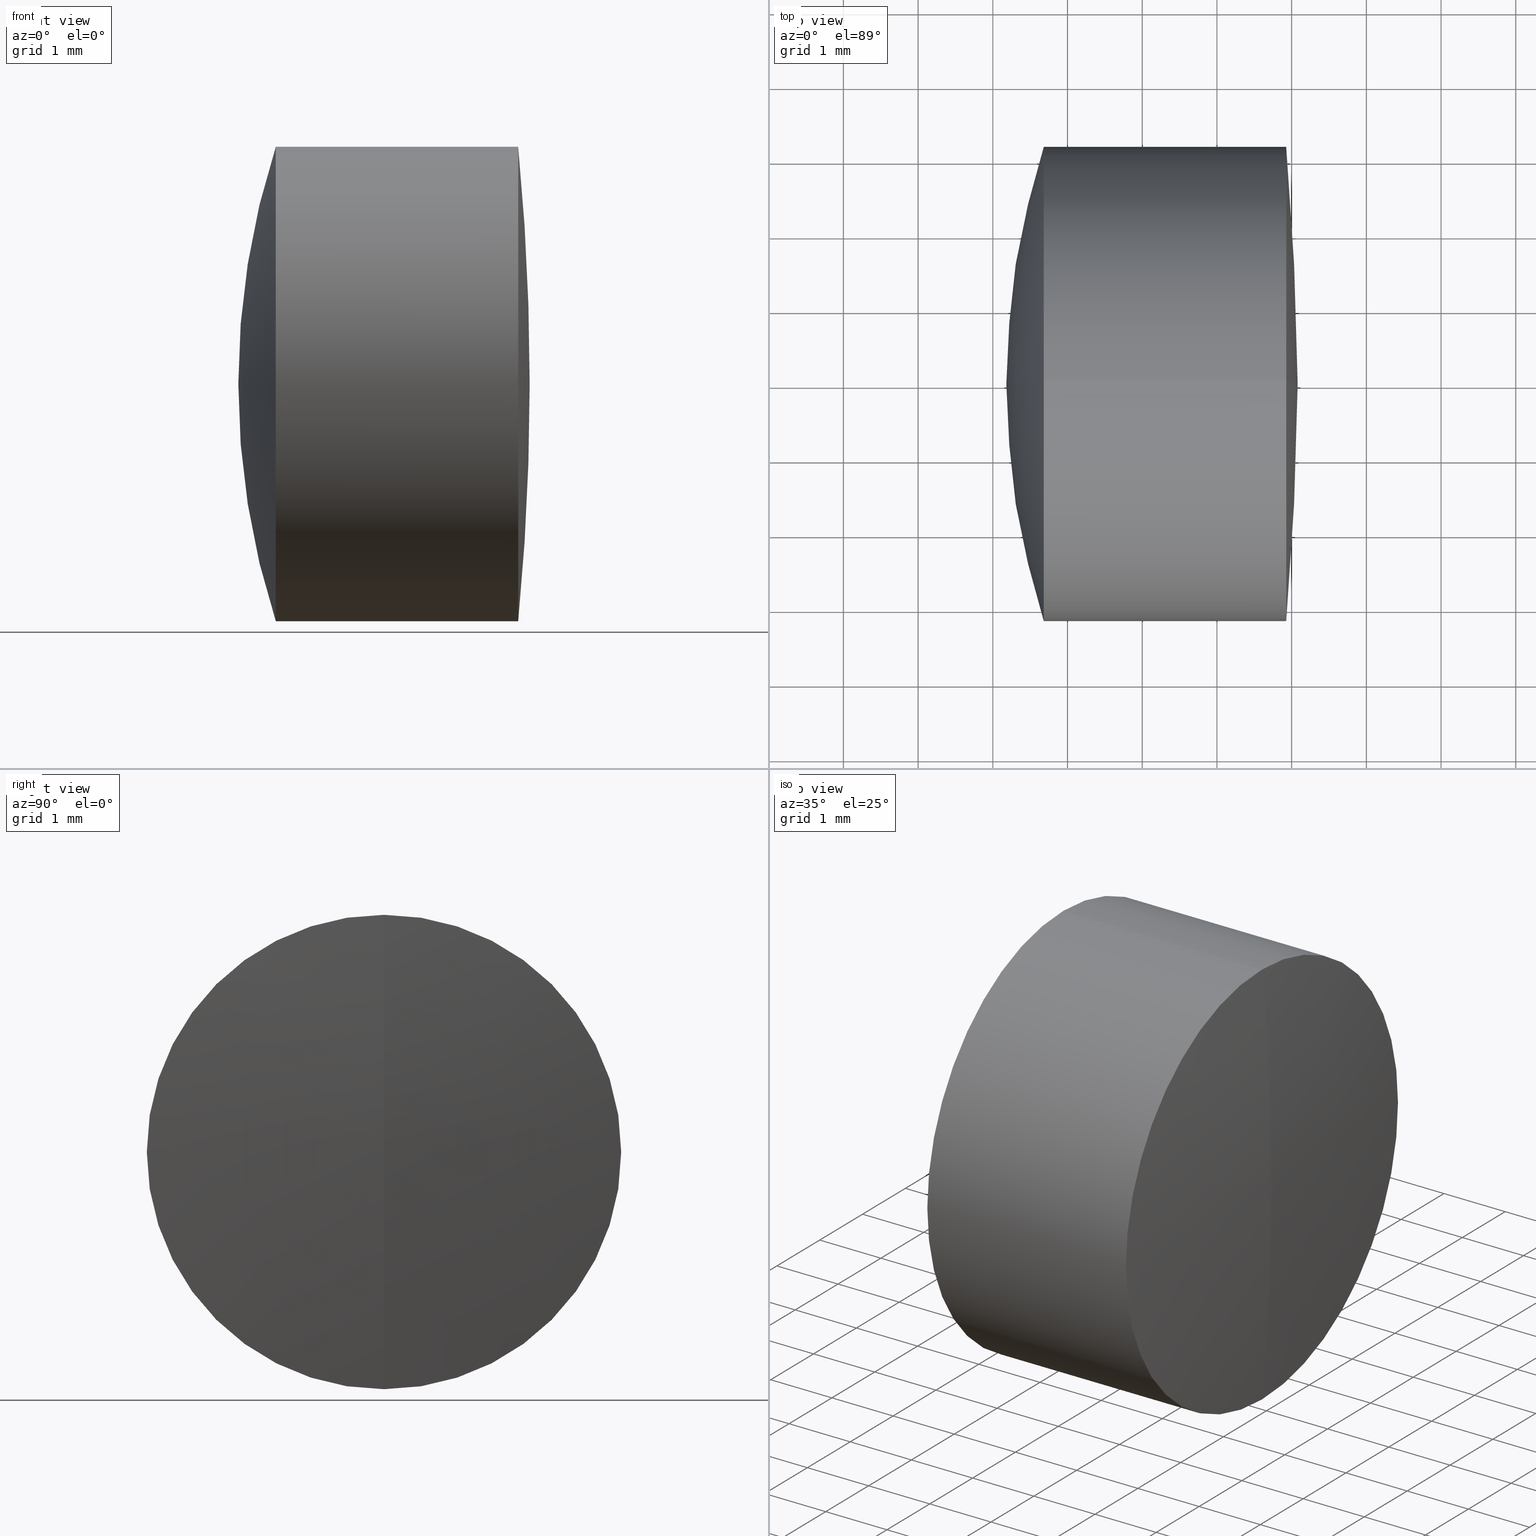
[diagram: canonical four-view strip — front | top / right | iso, engineering-drawing reading convention]
A machine part, canonical four-view strip (front | top / right | iso — engineering-drawing reading convention). The complete STEP part file that produces these views, byte-faithful:
ISO-10303-21;
HEADER;
FILE_DESCRIPTION (( 'STEP AP214' ),
    '1' );
FILE_NAME ('145105.STEP',
    '2019-05-29T01:53:21',
    ( 'user' ),
    ( '΢���й�' ),
    'SwSTEP 2.0',
    'SolidWorks 2016',
    '' );
FILE_SCHEMA (( 'AUTOMOTIVE_DESIGN' ));
ENDSEC;

DATA;
#1 = DIRECTION ( 'NONE',  ( -1.000000000000000000, -0.0000000000000000000, -0.0000000000000000000 ) ) ;
#2 = EDGE_CURVE ( 'NONE', #155, #47, #7, .T. ) ;
#3 = CARTESIAN_POINT ( 'NONE',  ( 271.4807127546710600, 0.0000000000000000000, 1.443480347080286500E-016 ) ) ;
#4 = CIRCLE ( 'NONE', #324, 3.175000000000000300 ) ;
#5 = SPHERICAL_SURFACE ( 'NONE', #291, 32.90000000000002700 ) ;
#6 = AXIS2_PLACEMENT_3D ( 'NONE', #280, #101, #251 ) ;
#7 = CIRCLE ( 'NONE', #341, 7.800000000000546900 ) ;
#8 = ORIENTED_EDGE ( 'NONE', *, *, #345, .F. ) ;
#9 = EDGE_LOOP ( 'NONE', ( #276, #259, #87, #168 ) ) ;
#10 = DIRECTION ( 'NONE',  ( 1.000000000000000000, 0.0000000000000000000, 0.0000000000000000000 ) ) ;
#11 = STYLED_ITEM ( 'NONE', ( #111 ), #297 ) ;
#12 = ADVANCED_FACE ( 'NONE', ( #153 ), #260, .T. ) ;
#13 = ADVANCED_BREP_SHAPE_REPRESENTATION ( '145105', ( #297, #118, #246 ), #91 ) ;
#14 = DIRECTION ( 'NONE',  ( 0.0000000000000000000, 0.0000000000000000000, 1.000000000000000000 ) ) ;
#15 = AXIS2_PLACEMENT_3D ( 'NONE', #230, #48, #202 ) ;
#16 = DIRECTION ( 'NONE',  ( 0.0000000000000000000, -1.000000000000000000, 0.0000000000000000000 ) ) ;
#17 = EDGE_CURVE ( 'NONE', #210, #46, #328, .T. ) ;
#18 =( LENGTH_UNIT ( ) NAMED_UNIT ( * ) SI_UNIT ( .MILLI., .METRE. ) );
#19 = DIRECTION ( 'NONE',  ( 0.0000000000000000000, -1.000000000000000000, -1.224646799147353200E-016 ) ) ;
#20 = AXIS2_PLACEMENT_3D ( 'NONE', #310, #19, #110 ) ;
#21 = EDGE_LOOP ( 'NONE', ( #335, #108, #255, #221 ) ) ;
#22 = SPHERICAL_SURFACE ( 'NONE', #69, 7.800000000000547800 ) ;
#23 = DIRECTION ( 'NONE',  ( 0.0000000000000000000, 1.000000000000000000, 0.0000000000000000000 ) ) ;
#24 = ORIENTED_EDGE ( 'NONE', *, *, #113, .T. ) ;
#25 = EDGE_CURVE ( 'NONE', #307, #46, #292, .T. ) ;
#26 = FACE_OUTER_BOUND ( 'NONE', #52, .T. ) ;
#27 = DIRECTION ( 'NONE',  ( -1.000000000000000000, -0.0000000000000000000, -0.0000000000000000000 ) ) ;
#28 = AXIS2_PLACEMENT_3D ( 'NONE', #90, #187, #295 ) ;
#29 = AXIS2_PLACEMENT_3D ( 'NONE', #329, #253, #14 ) ;
#30 = SURFACE_STYLE_USAGE ( .BOTH. , #240 ) ;
#31 = DIRECTION ( 'NONE',  ( -0.0000000000000000000, -1.000000000000000000, -0.0000000000000000000 ) ) ;
#32 = ORIENTED_EDGE ( 'NONE', *, *, #275, .F. ) ;
#33 = ORIENTED_EDGE ( 'NONE', *, *, #43, .T. ) ;
#34 = DIRECTION ( 'NONE',  ( 0.0000000000000000000, 0.0000000000000000000, 1.000000000000000000 ) ) ;
#35 = CARTESIAN_POINT ( 'NONE',  ( 264.9271534009465100, 3.888253587292847600E-016, -3.175000000000000700 ) ) ;
#36 = CARTESIAN_POINT ( 'NONE',  ( -0.5519199926577972300, 0.0000000000000000000, 3.175000000000001600 ) ) ;
#37 = EDGE_CURVE ( 'NONE', #210, #220, #199, .T. ) ;
#38 = EDGE_LOOP ( 'NONE', ( #244, #59, #218 ) ) ;
#39 = FACE_OUTER_BOUND ( 'NONE', #51, .T. ) ;
#40 = MECHANICAL_DESIGN_GEOMETRIC_PRESENTATION_REPRESENTATION (  '', ( #298 ), #225 ) ;
#41 = FACE_OUTER_BOUND ( 'NONE', #219, .T. ) ;
#42 = CARTESIAN_POINT ( 'NONE',  ( 0.0000000000000000000, 0.0000000000000000000, 0.0000000000000000000 ) ) ;
#43 = EDGE_CURVE ( 'NONE', #277, #194, #133, .T. ) ;
#44 =( NAMED_UNIT ( * ) PLANE_ANGLE_UNIT ( ) SI_UNIT ( $, .RADIAN. ) );
#45 = ADVANCED_FACE ( 'NONE', ( #65 ), #238, .T. ) ;
#46 = VERTEX_POINT ( 'NONE', #35 ) ;
#47 = VERTEX_POINT ( 'NONE', #88 ) ;
#48 = DIRECTION ( 'NONE',  ( -0.0000000000000000000, 1.000000000000000000, 1.224646799147353200E-016 ) ) ;
#49 = SURFACE_SIDE_STYLE ('',( #308 ) ) ;
#50 = AXIS2_PLACEMENT_3D ( 'NONE', #266, #31, #184 ) ;
#51 = EDGE_LOOP ( 'NONE', ( #148, #24, #263 ) ) ;
#52 = EDGE_LOOP ( 'NONE', ( #66, #140, #109, #128 ) ) ;
#53 = FACE_OUTER_BOUND ( 'NONE', #226, .T. ) ;
#54 = CARTESIAN_POINT ( 'NONE',  ( 232.1807127546716700, 0.0000000000000000000, 0.0000000000000000000 ) ) ;
#55 = CARTESIAN_POINT ( 'NONE',  ( 261.1807127546711100, 0.0000000000000000000, -4.863450668528573700E-016 ) ) ;
#56 = STYLED_ITEM ( 'NONE', ( #331 ), #13 ) ;
#57 = CARTESIAN_POINT ( 'NONE',  ( 232.1807127546716700, 0.0000000000000000000, 0.0000000000000000000 ) ) ;
#58 = COLOUR_RGB ( '',1.000000000000000000, 1.000000000000000000, 1.000000000000000000 ) ;
#59 = ORIENTED_EDGE ( 'NONE', *, *, #303, .T. ) ;
#60 = CIRCLE ( 'NONE', #78, 3.175000000000000300 ) ;
#61 = CARTESIAN_POINT ( 'NONE',  ( 255.7807127546711300, 0.0000000000000000000, 0.0000000000000000000 ) ) ;
#62 = CARTESIAN_POINT ( 'NONE',  ( 262.9052741446802200, 0.0000000000000000000, 0.0000000000000000000 ) ) ;
#63 = EDGE_CURVE ( 'NONE', #180, #47, #4, .T. ) ;
#64 = EDGE_LOOP ( 'NONE', ( #147, #104, #85 ) ) ;
#65 = FACE_OUTER_BOUND ( 'NONE', #120, .T. ) ;
#66 = ORIENTED_EDGE ( 'NONE', *, *, #17, .T. ) ;
#67 = EDGE_CURVE ( 'NONE', #46, #231, #188, .T. ) ;
#68 = CYLINDRICAL_SURFACE ( 'NONE', #325, 3.174999999999999800 ) ;
#69 = AXIS2_PLACEMENT_3D ( 'NONE', #138, #306, #282 ) ;
#70 = CARTESIAN_POINT ( 'NONE',  ( 264.9271534009465100, 0.0000000000000000000, 0.0000000000000000000 ) ) ;
#71 = SHAPE_DEFINITION_REPRESENTATION ( #185, #13 ) ;
#72 =( NAMED_UNIT ( * ) SI_UNIT ( $, .STERADIAN. ) SOLID_ANGLE_UNIT ( ) );
#73 = CYLINDRICAL_SURFACE ( 'NONE', #258, 3.174999999999999800 ) ;
#74 = ADVANCED_FACE ( 'NONE', ( #41 ), #265, .T. ) ;
#75 = CYLINDRICAL_SURFACE ( 'NONE', #336, 3.175000000000001600 ) ;
#76 = DIRECTION ( 'NONE',  ( 0.0000000000000000000, 0.0000000000000000000, 1.000000000000000000 ) ) ;
#77 = EDGE_CURVE ( 'NONE', #220, #231, #285, .T. ) ;
#78 = AXIS2_PLACEMENT_3D ( 'NONE', #103, #254, #76 ) ;
#79 = ORIENTED_EDGE ( 'NONE', *, *, #2, .T. ) ;
#80 = VERTEX_POINT ( 'NONE', #294 ) ;
#81 = UNCERTAINTY_MEASURE_WITH_UNIT (LENGTH_MEASURE( 1.000000000000000100E-005 ), #125, 'distance_accuracy_value', 'NONE');
#82 = DIRECTION ( 'NONE',  ( -1.000000000000000000, -0.0000000000000000000, -0.0000000000000000000 ) ) ;
#83 = AXIS2_PLACEMENT_3D ( 'NONE', #161, #229, #176 ) ;
#84 = FILL_AREA_STYLE ('',( #159 ) ) ;
#85 = ORIENTED_EDGE ( 'NONE', *, *, #288, .F. ) ;
#86 = DIRECTION ( 'NONE',  ( -1.000000000000000000, -0.0000000000000000000, -0.0000000000000000000 ) ) ;
#87 = ORIENTED_EDGE ( 'NONE', *, *, #167, .T. ) ;
#88 = CARTESIAN_POINT ( 'NONE',  ( 262.9052741446802200, 0.0000000000000000000, 3.175000000000000300 ) ) ;
#89 = DIRECTION ( 'NONE',  ( 0.0000000000000000000, 0.0000000000000000000, -1.000000000000000000 ) ) ;
#90 = CARTESIAN_POINT ( 'NONE',  ( 255.7807127546711300, 0.0000000000000000000, 0.0000000000000000000 ) ) ;
#91 =( GEOMETRIC_REPRESENTATION_CONTEXT ( 3 ) GLOBAL_UNCERTAINTY_ASSIGNED_CONTEXT ( ( #81 ) ) GLOBAL_UNIT_ASSIGNED_CONTEXT ( ( #125, #44, #200 ) ) REPRESENTATION_CONTEXT ( 'NONE', 'WORKASPACE' ) );
#92 = CARTESIAN_POINT ( 'NONE',  ( 124.5233095260452400, 3.888253587292846100E-016, -3.174999999999999800 ) ) ;
#93 = AXIS2_PLACEMENT_3D ( 'NONE', #313, #137, #290 ) ;
#94 = EDGE_LOOP ( 'NONE', ( #211, #117, #32 ) ) ;
#95 = CIRCLE ( 'NONE', #319, 3.174999999999999800 ) ;
#96 = AXIS2_PLACEMENT_3D ( 'NONE', #62, #217, #34 ) ;
#97 = CLOSED_SHELL ( 'NONE', ( #279, #100, #74, #252, #198, #45 ) ) ;
#98 =( LENGTH_UNIT ( ) NAMED_UNIT ( * ) SI_UNIT ( .MILLI., .METRE. ) );
#99 = AXIS2_PLACEMENT_3D ( 'NONE', #165, #314, #271 ) ;
#100 = ADVANCED_FACE ( 'NONE', ( #124 ), #73, .T. ) ;
#101 = DIRECTION ( 'NONE',  ( -1.000000000000000000, -0.0000000000000000000, -0.0000000000000000000 ) ) ;
#102 = DIRECTION ( 'NONE',  ( 0.0000000000000000000, 0.0000000000000000000, 1.000000000000000000 ) ) ;
#103 = CARTESIAN_POINT ( 'NONE',  ( 262.9052741446802200, 0.0000000000000000000, 0.0000000000000000000 ) ) ;
#104 = ORIENTED_EDGE ( 'NONE', *, *, #315, .T. ) ;
#105 = ORIENTED_EDGE ( 'NONE', *, *, #192, .T. ) ;
#106 = MECHANICAL_DESIGN_GEOMETRIC_PRESENTATION_REPRESENTATION (  '', ( #11 ), #142 ) ;
#107 = CARTESIAN_POINT ( 'NONE',  ( 124.5233095260452400, 0.0000000000000000000, 3.174999999999999800 ) ) ;
#108 = ORIENTED_EDGE ( 'NONE', *, *, #249, .T. ) ;
#109 = ORIENTED_EDGE ( 'NONE', *, *, #77, .F. ) ;
#110 = DIRECTION ( 'NONE',  ( 0.0000000000000000000, 1.224646799147353200E-016, -1.000000000000000000 ) ) ;
#111 = PRESENTATION_STYLE_ASSIGNMENT (( #205 ) ) ;
#112 = DIRECTION ( 'NONE',  ( -1.000000000000000000, -0.0000000000000000000, -0.0000000000000000000 ) ) ;
#113 = EDGE_CURVE ( 'NONE', #274, #231, #317, .T. ) ;
#114 = DIRECTION ( 'NONE',  ( 0.0000000000000000000, -1.000000000000000000, 0.0000000000000000000 ) ) ;
#115 = EDGE_CURVE ( 'NONE', #80, #277, #136, .T. ) ;
#116 = DIRECTION ( 'NONE',  ( -0.0000000000000000000, 1.000000000000000000, 1.224646799147353200E-016 ) ) ;
#117 = ORIENTED_EDGE ( 'NONE', *, *, #150, .T. ) ;
#118 = MANIFOLD_SOLID_BREP ( '��ת3', #287 ) ;
#119 = AXIS2_PLACEMENT_3D ( 'NONE', #213, #27, #239 ) ;
#120 = EDGE_LOOP ( 'NONE', ( #197, #79, #293 ) ) ;
#121 = SPHERICAL_SURFACE ( 'NONE', #305, 10.29999999999998600 ) ;
#122 = SURFACE_SIDE_STYLE ('',( #193 ) ) ;
#123 = ORIENTED_EDGE ( 'NONE', *, *, #115, .T. ) ;
#124 = FACE_OUTER_BOUND ( 'NONE', #21, .T. ) ;
#125 =( LENGTH_UNIT ( ) NAMED_UNIT ( * ) SI_UNIT ( .MILLI., .METRE. ) );
#126 = CARTESIAN_POINT ( 'NONE',  ( 261.6822753792524700, 0.0000000000000000000, 0.0000000000000000000 ) ) ;
#127 = AXIS2_PLACEMENT_3D ( 'NONE', #203, #16, #175 ) ;
#128 = ORIENTED_EDGE ( 'NONE', *, *, #37, .F. ) ;
#129 = FILL_AREA_STYLE_COLOUR ( '', #182 ) ;
#130 = FACE_OUTER_BOUND ( 'NONE', #9, .T. ) ;
#131 = CARTESIAN_POINT ( 'NONE',  ( 264.9271534009465100, 0.0000000000000000000, 3.175000000000000700 ) ) ;
#132 = PRESENTATION_LAYER_ASSIGNMENT (  '', '', ( #298 ) ) ;
#133 = CIRCLE ( 'NONE', #257, 10.29999999999998600 ) ;
#134 = DIRECTION ( 'NONE',  ( 0.0000000000000000000, -1.000000000000000000, 0.0000000000000000000 ) ) ;
#135 = FACE_OUTER_BOUND ( 'NONE', #64, .T. ) ;
#136 = CIRCLE ( 'NONE', #93, 3.174999999999999800 ) ;
#137 = DIRECTION ( 'NONE',  ( -1.000000000000000000, -0.0000000000000000000, -0.0000000000000000000 ) ) ;
#138 = CARTESIAN_POINT ( 'NONE',  ( 255.7807127546711300, 0.0000000000000000000, 0.0000000000000000000 ) ) ;
#139 = DIRECTION ( 'NONE',  ( -1.000000000000000000, -0.0000000000000000000, -0.0000000000000000000 ) ) ;
#140 = ORIENTED_EDGE ( 'NONE', *, *, #67, .T. ) ;
#141 = DIRECTION ( 'NONE',  ( 0.0000000000000000000, 0.0000000000000000000, 1.000000000000000000 ) ) ;
#142 =( GEOMETRIC_REPRESENTATION_CONTEXT ( 3 ) GLOBAL_UNCERTAINTY_ASSIGNED_CONTEXT ( ( #237 ) ) GLOBAL_UNIT_ASSIGNED_CONTEXT ( ( #18, #330, #152 ) ) REPRESENTATION_CONTEXT ( 'NONE', 'WORKASPACE' ) );
#143 = VECTOR ( 'NONE', #86, 1000.000000000000000 ) ;
#144 = CARTESIAN_POINT ( 'NONE',  ( 124.5233095260452400, 0.0000000000000000000, 0.0000000000000000000 ) ) ;
#145 = SPHERICAL_SURFACE ( 'NONE', #29, 7.800000000000547800 ) ;
#146 = APPLICATION_PROTOCOL_DEFINITION ( 'draft international standard', 'automotive_design', 1998, #326 ) ;
#147 = ORIENTED_EDGE ( 'NONE', *, *, #2, .F. ) ;
#148 = ORIENTED_EDGE ( 'NONE', *, *, #303, .F. ) ;
#149 = APPLICATION_CONTEXT ( 'automotive_design' ) ;
#150 = EDGE_CURVE ( 'NONE', #307, #210, #283, .T. ) ;
#151 = ADVANCED_FACE ( 'NONE', ( #26 ), #75, .T. ) ;
#152 =( NAMED_UNIT ( * ) SI_UNIT ( $, .STERADIAN. ) SOLID_ANGLE_UNIT ( ) );
#153 = FACE_OUTER_BOUND ( 'NONE', #94, .T. ) ;
#154 = CARTESIAN_POINT ( 'NONE',  ( 262.9052741446802200, 3.888253587292849000E-016, -3.175000000000002000 ) ) ;
#155 = VERTEX_POINT ( 'NONE', #262 ) ;
#156 = PRESENTATION_LAYER_ASSIGNMENT (  '', '', ( #11 ) ) ;
#157 = CARTESIAN_POINT ( 'NONE',  ( 262.9052741446802200, 3.888253587292847100E-016, -3.175000000000000700 ) ) ;
#158 =( NAMED_UNIT ( * ) SI_UNIT ( $, .STERADIAN. ) SOLID_ANGLE_UNIT ( ) );
#159 = FILL_AREA_STYLE_COLOUR ( '', #178 ) ;
#160 = CARTESIAN_POINT ( 'NONE',  ( 262.9052741446802200, 0.0000000000000000000, 0.0000000000000000000 ) ) ;
#161 = CARTESIAN_POINT ( 'NONE',  ( 255.7807127546711300, 0.0000000000000000000, 0.0000000000000000000 ) ) ;
#162 = DIRECTION ( 'NONE',  ( 0.0000000000000000000, 0.0000000000000000000, 1.000000000000000000 ) ) ;
#163 = DIRECTION ( 'NONE',  ( 0.0000000000000000000, 0.0000000000000000000, -1.000000000000000000 ) ) ;
#164 = ORIENTED_EDGE ( 'NONE', *, *, #37, .T. ) ;
#165 = CARTESIAN_POINT ( 'NONE',  ( 232.1807127546716700, 0.0000000000000000000, 0.0000000000000000000 ) ) ;
#166 = PRODUCT ( '145105', '145105', '', ( #170 ) ) ;
#167 = EDGE_CURVE ( 'NONE', #47, #80, #273, .T. ) ;
#168 = ORIENTED_EDGE ( 'NONE', *, *, #311, .F. ) ;
#169 = ORIENTED_EDGE ( 'NONE', *, *, #25, .T. ) ;
#170 = PRODUCT_CONTEXT ( 'NONE', #149, 'mechanical' ) ;
#171 = APPLICATION_PROTOCOL_DEFINITION ( 'draft international standard', 'automotive_design', 1998, #149 ) ;
#172 = ADVANCED_FACE ( 'NONE', ( #206 ), #195, .T. ) ;
#173 = SURFACE_STYLE_FILL_AREA ( #84 ) ;
#174 = UNCERTAINTY_MEASURE_WITH_UNIT (LENGTH_MEASURE( 1.000000000000000100E-005 ), #179, 'distance_accuracy_value', 'NONE');
#175 = DIRECTION ( 'NONE',  ( 0.0000000000000000000, 0.0000000000000000000, -1.000000000000000000 ) ) ;
#176 = DIRECTION ( 'NONE',  ( 0.0000000000000000000, 0.0000000000000000000, 1.000000000000000000 ) ) ;
#177 = CARTESIAN_POINT ( 'NONE',  ( 262.9052741446802200, 0.0000000000000000000, 3.175000000000002000 ) ) ;
#178 = COLOUR_RGB ( '',1.000000000000000000, 1.000000000000000000, 1.000000000000000000 ) ;
#179 =( LENGTH_UNIT ( ) NAMED_UNIT ( * ) SI_UNIT ( .MILLI., .METRE. ) );
#180 = VERTEX_POINT ( 'NONE', #157 ) ;
#181 = AXIS2_PLACEMENT_3D ( 'NONE', #57, #134, #289 ) ;
#182 = COLOUR_RGB ( '',1.000000000000000000, 1.000000000000000000, 1.000000000000000000 ) ;
#183 = DIRECTION ( 'NONE',  ( 0.0000000000000000000, -1.224646799147353200E-016, 1.000000000000000000 ) ) ;
#184 = DIRECTION ( 'NONE',  ( 0.0000000000000000000, 0.0000000000000000000, -1.000000000000000000 ) ) ;
#185 = PRODUCT_DEFINITION_SHAPE ( 'NONE', 'NONE',  #233 ) ;
#186 = CARTESIAN_POINT ( 'NONE',  ( 261.6822753792524700, 0.0000000000000000000, -3.174999999999999800 ) ) ;
#187 = DIRECTION ( 'NONE',  ( 0.0000000000000000000, 1.000000000000000000, 0.0000000000000000000 ) ) ;
#188 = LINE ( 'NONE', #222, #269 ) ;
#189 = CARTESIAN_POINT ( 'NONE',  ( 264.9271534009465100, 0.0000000000000000000, 0.0000000000000000000 ) ) ;
#190 = CARTESIAN_POINT ( 'NONE',  ( 263.5807127546716500, 0.0000000000000000000, 4.776122516675012600E-016 ) ) ;
#191 = DIRECTION ( 'NONE',  ( -1.000000000000000000, -0.0000000000000000000, -0.0000000000000000000 ) ) ;
#192 = EDGE_CURVE ( 'NONE', #80, #194, #339, .T. ) ;
#193 = SURFACE_STYLE_FILL_AREA ( #300 ) ;
#194 = VERTEX_POINT ( 'NONE', #55 ) ;
#195 = CYLINDRICAL_SURFACE ( 'NONE', #119, 3.175000000000001600 ) ;
#196 = DIRECTION ( 'NONE',  ( 0.0000000000000000000, 0.0000000000000000000, 1.000000000000000000 ) ) ;
#197 = ORIENTED_EDGE ( 'NONE', *, *, #315, .F. ) ;
#198 = ADVANCED_FACE ( 'NONE', ( #130 ), #68, .T. ) ;
#199 = LINE ( 'NONE', #36, #337 ) ;
#200 =( NAMED_UNIT ( * ) SI_UNIT ( $, .STERADIAN. ) SOLID_ANGLE_UNIT ( ) );
#201 = AXIS2_PLACEMENT_3D ( 'NONE', #61, #216, #183 ) ;
#202 = DIRECTION ( 'NONE',  ( 0.0000000000000000000, -1.224646799147353000E-016, 1.000000000000000000 ) ) ;
#203 = CARTESIAN_POINT ( 'NONE',  ( 255.7807127546711300, 0.0000000000000000000, 0.0000000000000000000 ) ) ;
#204 = CIRCLE ( 'NONE', #127, 7.800000000000547800 ) ;
#205 = SURFACE_STYLE_USAGE ( .BOTH. , #49 ) ;
#206 = FACE_OUTER_BOUND ( 'NONE', #248, .T. ) ;
#207 = DIRECTION ( 'NONE',  ( 0.0000000000000000000, 0.0000000000000000000, 1.000000000000000000 ) ) ;
#208 = PRODUCT_DEFINITION_FORMATION_WITH_SPECIFIED_SOURCE ( '�κ�', '', #166, .NOT_KNOWN. ) ;
#209 = CIRCLE ( 'NONE', #15, 7.800000000000546900 ) ;
#210 = VERTEX_POINT ( 'NONE', #131 ) ;
#211 = ORIENTED_EDGE ( 'NONE', *, *, #25, .F. ) ;
#212 = DIRECTION ( 'NONE',  ( 0.0000000000000000000, 0.0000000000000000000, 1.000000000000000000 ) ) ;
#213 = CARTESIAN_POINT ( 'NONE',  ( -0.5519199926577972300, 0.0000000000000000000, 0.0000000000000000000 ) ) ;
#214 = FACE_OUTER_BOUND ( 'NONE', #323, .T. ) ;
#215 = DIRECTION ( 'NONE',  ( 0.0000000000000000000, 0.0000000000000000000, 1.000000000000000000 ) ) ;
#216 = DIRECTION ( 'NONE',  ( -0.0000000000000000000, 1.000000000000000000, 1.224646799147353200E-016 ) ) ;
#217 = DIRECTION ( 'NONE',  ( -1.000000000000000000, -0.0000000000000000000, -0.0000000000000000000 ) ) ;
#218 = ORIENTED_EDGE ( 'NONE', *, *, #77, .T. ) ;
#219 = EDGE_LOOP ( 'NONE', ( #247, #105, #236 ) ) ;
#220 = VERTEX_POINT ( 'NONE', #177 ) ;
#221 = ORIENTED_EDGE ( 'NONE', *, *, #167, .F. ) ;
#222 = CARTESIAN_POINT ( 'NONE',  ( -0.5519199926577972300, 3.888253587292848100E-016, -3.175000000000001600 ) ) ;
#223 = AXIS2_PLACEMENT_3D ( 'NONE', #296, #116, #270 ) ;
#224 = PRODUCT_RELATED_PRODUCT_CATEGORY ( 'part', '', ( #166 ) ) ;
#225 =( GEOMETRIC_REPRESENTATION_CONTEXT ( 3 ) GLOBAL_UNCERTAINTY_ASSIGNED_CONTEXT ( ( #174 ) ) GLOBAL_UNIT_ASSIGNED_CONTEXT ( ( #179, #340, #158 ) ) REPRESENTATION_CONTEXT ( 'NONE', 'WORKASPACE' ) );
#226 = EDGE_LOOP ( 'NONE', ( #321, #123, #33 ) ) ;
#227 = ADVANCED_FACE ( 'NONE', ( #214 ), #5, .T. ) ;
#228 = UNCERTAINTY_MEASURE_WITH_UNIT (LENGTH_MEASURE( 1.000000000000000100E-005 ), #98, 'distance_accuracy_value', 'NONE');
#229 = DIRECTION ( 'NONE',  ( 0.0000000000000000000, 1.000000000000000000, 0.0000000000000000000 ) ) ;
#230 = CARTESIAN_POINT ( 'NONE',  ( 255.7807127546711300, 0.0000000000000000000, 0.0000000000000000000 ) ) ;
#231 = VERTEX_POINT ( 'NONE', #154 ) ;
#232 = CARTESIAN_POINT ( 'NONE',  ( 265.0807127546717100, 0.0000000000000000000, 2.014543984597397600E-015 ) ) ;
#233 = PRODUCT_DEFINITION ( 'δ֪', '', #208, #334 ) ;
#234 = FILL_AREA_STYLE ('',( #129 ) ) ;
#235 = ORIENTED_EDGE ( 'NONE', *, *, #150, .F. ) ;
#236 = ORIENTED_EDGE ( 'NONE', *, *, #43, .F. ) ;
#237 = UNCERTAINTY_MEASURE_WITH_UNIT (LENGTH_MEASURE( 1.000000000000000100E-005 ), #18, 'distance_accuracy_value', 'NONE');
#238 = SPHERICAL_SURFACE ( 'NONE', #28, 7.800000000000546900 ) ;
#239 = DIRECTION ( 'NONE',  ( 0.0000000000000000000, 0.0000000000000000000, 1.000000000000000000 ) ) ;
#240 = SURFACE_SIDE_STYLE ('',( #173 ) ) ;
#241 = AXIS2_PLACEMENT_3D ( 'NONE', #189, #1, #162 ) ;
#242 = ORIENTED_EDGE ( 'NONE', *, *, #17, .F. ) ;
#243 = ORIENTED_EDGE ( 'NONE', *, *, #275, .T. ) ;
#244 = ORIENTED_EDGE ( 'NONE', *, *, #113, .F. ) ;
#245 = DIRECTION ( 'NONE',  ( -0.0000000000000000000, -1.000000000000000000, -0.0000000000000000000 ) ) ;
#246 = AXIS2_PLACEMENT_3D ( 'NONE', #42, #196, #10 ) ;
#247 = ORIENTED_EDGE ( 'NONE', *, *, #311, .T. ) ;
#248 = EDGE_LOOP ( 'NONE', ( #346, #243, #164, #8 ) ) ;
#249 = EDGE_CURVE ( 'NONE', #180, #277, #264, .T. ) ;
#250 =( NAMED_UNIT ( * ) PLANE_ANGLE_UNIT ( ) SI_UNIT ( $, .RADIAN. ) );
#251 = DIRECTION ( 'NONE',  ( 0.0000000000000000000, 0.0000000000000000000, 1.000000000000000000 ) ) ;
#252 = ADVANCED_FACE ( 'NONE', ( #53 ), #121, .T. ) ;
#253 = DIRECTION ( 'NONE',  ( 0.0000000000000000000, 1.000000000000000000, 0.0000000000000000000 ) ) ;
#254 = DIRECTION ( 'NONE',  ( -1.000000000000000000, -0.0000000000000000000, -0.0000000000000000000 ) ) ;
#255 = ORIENTED_EDGE ( 'NONE', *, *, #115, .F. ) ;
#256 = CIRCLE ( 'NONE', #338, 3.175000000000000700 ) ;
#257 = AXIS2_PLACEMENT_3D ( 'NONE', #347, #316, #141 ) ;
#258 = AXIS2_PLACEMENT_3D ( 'NONE', #268, #267, #342 ) ;
#259 = ORIENTED_EDGE ( 'NONE', *, *, #63, .T. ) ;
#260 = SPHERICAL_SURFACE ( 'NONE', #99, 32.90000000000002700 ) ;
#261 = CARTESIAN_POINT ( 'NONE',  ( -0.5519199926577972300, 0.0000000000000000000, 0.0000000000000000000 ) ) ;
#262 = CARTESIAN_POINT ( 'NONE',  ( 263.5807127546716500, 0.0000000000000000000, 4.776122516675011600E-016 ) ) ;
#263 = ORIENTED_EDGE ( 'NONE', *, *, #345, .T. ) ;
#264 = LINE ( 'NONE', #92, #333 ) ;
#265 = SPHERICAL_SURFACE ( 'NONE', #50, 10.29999999999998600 ) ;
#266 = CARTESIAN_POINT ( 'NONE',  ( 271.4807127546710600, 0.0000000000000000000, 1.443480347080286500E-016 ) ) ;
#267 = DIRECTION ( 'NONE',  ( -1.000000000000000000, -0.0000000000000000000, -0.0000000000000000000 ) ) ;
#268 = CARTESIAN_POINT ( 'NONE',  ( 124.5233095260452400, 0.0000000000000000000, 0.0000000000000000000 ) ) ;
#269 = VECTOR ( 'NONE', #344, 1000.000000000000000 ) ;
#270 = DIRECTION ( 'NONE',  ( 0.0000000000000000000, -1.224646799147353200E-016, 1.000000000000000000 ) ) ;
#271 = DIRECTION ( 'NONE',  ( 0.0000000000000000000, 0.0000000000000000000, 1.000000000000000000 ) ) ;
#272 = DIRECTION ( 'NONE',  ( 0.0000000000000000000, 0.0000000000000000000, 1.000000000000000000 ) ) ;
#273 = LINE ( 'NONE', #107, #143 ) ;
#274 = VERTEX_POINT ( 'NONE', #190 ) ;
#275 = EDGE_CURVE ( 'NONE', #46, #210, #256, .T. ) ;
#276 = ORIENTED_EDGE ( 'NONE', *, *, #249, .F. ) ;
#277 = VERTEX_POINT ( 'NONE', #186 ) ;
#278 = SURFACE_STYLE_USAGE ( .BOTH. , #122 ) ;
#279 = ADVANCED_FACE ( 'NONE', ( #135 ), #322, .T. ) ;
#280 = CARTESIAN_POINT ( 'NONE',  ( 262.9052741446802200, 0.0000000000000000000, 0.0000000000000000000 ) ) ;
#281 = DIRECTION ( 'NONE',  ( -1.000000000000000000, -0.0000000000000000000, -0.0000000000000000000 ) ) ;
#282 = DIRECTION ( 'NONE',  ( 0.0000000000000000000, 0.0000000000000000000, 1.000000000000000000 ) ) ;
#283 = CIRCLE ( 'NONE', #181, 32.90000000000002700 ) ;
#284 = CIRCLE ( 'NONE', #6, 3.175000000000002900 ) ;
#285 = CIRCLE ( 'NONE', #96, 3.175000000000002900 ) ;
#286 = DIRECTION ( 'NONE',  ( -1.000000000000000000, -0.0000000000000000000, -0.0000000000000000000 ) ) ;
#287 = CLOSED_SHELL ( 'NONE', ( #227, #151, #301, #327, #172, #12 ) ) ;
#288 = EDGE_CURVE ( 'NONE', #47, #180, #60, .T. ) ;
#289 = DIRECTION ( 'NONE',  ( 0.0000000000000000000, 0.0000000000000000000, -1.000000000000000000 ) ) ;
#290 = DIRECTION ( 'NONE',  ( 0.0000000000000000000, 0.0000000000000000000, 1.000000000000000000 ) ) ;
#291 = AXIS2_PLACEMENT_3D ( 'NONE', #54, #23, #272 ) ;
#292 = CIRCLE ( 'NONE', #223, 32.90000000000002700 ) ;
#293 = ORIENTED_EDGE ( 'NONE', *, *, #63, .F. ) ;
#294 = CARTESIAN_POINT ( 'NONE',  ( 261.6822753792524700, -3.888253587292846100E-016, 3.174999999999999800 ) ) ;
#295 = DIRECTION ( 'NONE',  ( 0.0000000000000000000, 0.0000000000000000000, 1.000000000000000000 ) ) ;
#296 = CARTESIAN_POINT ( 'NONE',  ( 232.1807127546716700, 0.0000000000000000000, 0.0000000000000000000 ) ) ;
#297 = MANIFOLD_SOLID_BREP ( '��ת1', #97 ) ;
#298 = STYLED_ITEM ( 'NONE', ( #304 ), #118 ) ;
#299 =( GEOMETRIC_REPRESENTATION_CONTEXT ( 3 ) GLOBAL_UNCERTAINTY_ASSIGNED_CONTEXT ( ( #228 ) ) GLOBAL_UNIT_ASSIGNED_CONTEXT ( ( #98, #250, #72 ) ) REPRESENTATION_CONTEXT ( 'NONE', 'WORKASPACE' ) );
#300 = FILL_AREA_STYLE ('',( #302 ) ) ;
#301 = ADVANCED_FACE ( 'NONE', ( #39 ), #22, .F. ) ;
#302 = FILL_AREA_STYLE_COLOUR ( '', #58 ) ;
#303 = EDGE_CURVE ( 'NONE', #274, #220, #204, .T. ) ;
#304 = PRESENTATION_STYLE_ASSIGNMENT (( #30 ) ) ;
#305 = AXIS2_PLACEMENT_3D ( 'NONE', #3, #245, #163 ) ;
#306 = DIRECTION ( 'NONE',  ( 0.0000000000000000000, 1.000000000000000000, 0.0000000000000000000 ) ) ;
#307 = VERTEX_POINT ( 'NONE', #232 ) ;
#308 = SURFACE_STYLE_FILL_AREA ( #234 ) ;
#309 = DIRECTION ( 'NONE',  ( 0.0000000000000000000, 0.0000000000000000000, 1.000000000000000000 ) ) ;
#310 = CARTESIAN_POINT ( 'NONE',  ( 271.4807127546710600, 0.0000000000000000000, 1.443480347080286500E-016 ) ) ;
#311 = EDGE_CURVE ( 'NONE', #277, #80, #95, .T. ) ;
#312 = MECHANICAL_DESIGN_GEOMETRIC_PRESENTATION_REPRESENTATION (  '', ( #56 ), #299 ) ;
#313 = CARTESIAN_POINT ( 'NONE',  ( 261.6822753792524700, 0.0000000000000000000, 0.0000000000000000000 ) ) ;
#314 = DIRECTION ( 'NONE',  ( 0.0000000000000000000, 1.000000000000000000, 0.0000000000000000000 ) ) ;
#315 = EDGE_CURVE ( 'NONE', #155, #180, #209, .T. ) ;
#316 = DIRECTION ( 'NONE',  ( 0.0000000000000000000, 1.000000000000000000, -0.0000000000000000000 ) ) ;
#317 = CIRCLE ( 'NONE', #201, 7.800000000000547800 ) ;
#318 = DIRECTION ( 'NONE',  ( -1.000000000000000000, -0.0000000000000000000, -0.0000000000000000000 ) ) ;
#319 = AXIS2_PLACEMENT_3D ( 'NONE', #126, #281, #102 ) ;
#320 = CARTESIAN_POINT ( 'NONE',  ( 255.7807127546711300, 0.0000000000000000000, 0.0000000000000000000 ) ) ;
#321 = ORIENTED_EDGE ( 'NONE', *, *, #192, .F. ) ;
#322 = SPHERICAL_SURFACE ( 'NONE', #83, 7.800000000000546900 ) ;
#323 = EDGE_LOOP ( 'NONE', ( #235, #169, #242 ) ) ;
#324 = AXIS2_PLACEMENT_3D ( 'NONE', #160, #139, #215 ) ;
#325 = AXIS2_PLACEMENT_3D ( 'NONE', #144, #112, #309 ) ;
#326 = APPLICATION_CONTEXT ( 'automotive_design' ) ;
#327 = ADVANCED_FACE ( 'NONE', ( #343 ), #145, .F. ) ;
#328 = CIRCLE ( 'NONE', #241, 3.175000000000000700 ) ;
#329 = CARTESIAN_POINT ( 'NONE',  ( 255.7807127546711300, 0.0000000000000000000, 0.0000000000000000000 ) ) ;
#330 =( NAMED_UNIT ( * ) PLANE_ANGLE_UNIT ( ) SI_UNIT ( $, .RADIAN. ) );
#331 = PRESENTATION_STYLE_ASSIGNMENT (( #278 ) ) ;
#332 = PRESENTATION_LAYER_ASSIGNMENT (  '', '', ( #56 ) ) ;
#333 = VECTOR ( 'NONE', #286, 1000.000000000000000 ) ;
#334 = PRODUCT_DEFINITION_CONTEXT ( 'detailed design', #326, 'design' ) ;
#335 = ORIENTED_EDGE ( 'NONE', *, *, #288, .T. ) ;
#336 = AXIS2_PLACEMENT_3D ( 'NONE', #261, #82, #212 ) ;
#337 = VECTOR ( 'NONE', #318, 1000.000000000000000 ) ;
#338 = AXIS2_PLACEMENT_3D ( 'NONE', #70, #191, #207 ) ;
#339 = CIRCLE ( 'NONE', #20, 10.29999999999998600 ) ;
#340 =( NAMED_UNIT ( * ) PLANE_ANGLE_UNIT ( ) SI_UNIT ( $, .RADIAN. ) );
#341 = AXIS2_PLACEMENT_3D ( 'NONE', #320, #114, #89 ) ;
#342 = DIRECTION ( 'NONE',  ( 0.0000000000000000000, 0.0000000000000000000, 1.000000000000000000 ) ) ;
#343 = FACE_OUTER_BOUND ( 'NONE', #38, .T. ) ;
#344 = DIRECTION ( 'NONE',  ( -1.000000000000000000, -0.0000000000000000000, -0.0000000000000000000 ) ) ;
#345 = EDGE_CURVE ( 'NONE', #231, #220, #284, .T. ) ;
#346 = ORIENTED_EDGE ( 'NONE', *, *, #67, .F. ) ;
#347 = CARTESIAN_POINT ( 'NONE',  ( 271.4807127546710600, 0.0000000000000000000, 1.443480347080286500E-016 ) ) ;
ENDSEC;
END-ISO-10303-21;
